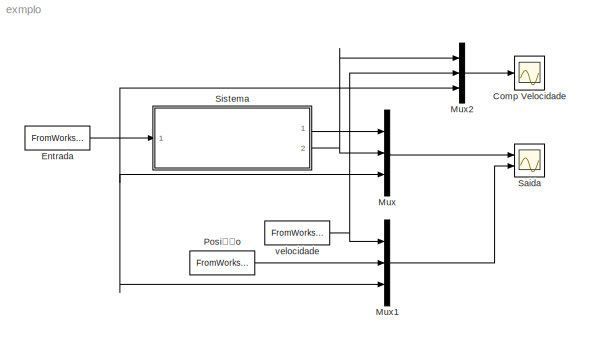
MODEL exmplo
KIND model
BLOCK [Scope] Comp Velocidade
  DataFormat = StructureWithTime
  Floating = off
  LimitDataPoints = off
  NumInputPorts = 1
  Ports = [1]
  SID = 19
  SampleTime = 0
  SaveName = ScopeData1
  ShowLegends = off
BLOCK [FromWorkspace] Entrada
  SID = 17
  SampleTime = 0
  VariableName = input
  ZeroCross = on
BLOCK [Mux] Mux
  DisplayOption = bar
  Inputs = 3
  Ports = [3, 1]
  SID = 13
BLOCK [Mux] Mux1
  DisplayOption = bar
  Inputs = 3
  Ports = [3, 1]
  SID = 18
BLOCK [Mux] Mux2
  DisplayOption = bar
  Inputs = 3
  Ports = [3, 1]
  SID = 20
BLOCK [FromWorkspace] Posição
  SID = 16
  SampleTime = 0
  VariableName = velt
  ZeroCross = on
BLOCK [Scope] Saida
  DataFormat = StructureWithTime
  Floating = off
  LimitDataPoints = off
  NumInputPorts = 2
  Ports = [2]
  SID = 12
  SampleTime = 0
  ShowLegends = off
  YMax = 6~15
  YMin = -10~-15
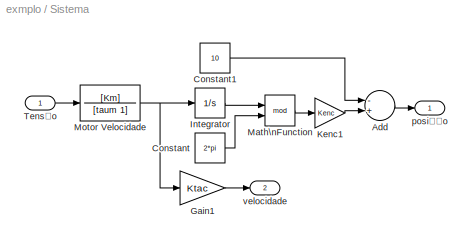
BLOCK [SubSystem] Sistema
  Ports = [1, 2]
  RequestExecContextInheritance = off
  SID = 7
BLOCK [Sum] Sistema/Add
  InputSameDT = off
  Inputs = -+
  OutDataTypeStr = Inherit: Inherit via internal rule
  Ports = [2, 1]
  SID = 21
  SaturateOnIntegerOverflow = off
BLOCK [Constant] Sistema/Constant
  SID = 6
  Value = 2*pi
BLOCK [Constant] Sistema/Constant1
  SID = 22
  Value = 10
BLOCK [Gain] Sistema/Gain1
  Gain = Ktac
  OutDataTypeStr = Inherit: Inherit via internal rule
  ParamDataTypeStr = Inherit: Inherit via internal rule
  SID = 4
  SaturateOnIntegerOverflow = off
BLOCK [Integrator] Sistema/Integrator
  Ports = [1, 1]
  SID = 2
BLOCK [Gain] Sistema/Kenc1
  Gain = Kenc
  OutDataTypeStr = Inherit: Inherit via internal rule
  ParamDataTypeStr = Inherit: Inherit via internal rule
  SID = 14
  SaturateOnIntegerOverflow = off
BLOCK [Math] Sistema/Math\nFunction
  Operator = mod
  Ports = [2, 1]
  SID = 5
BLOCK [TransferFcn] Sistema/Motor Velocidade
  Denominator = [taum 1]
  Numerator = [Km]
  SID = 1
BLOCK [Inport] Sistema/Tensão
  IconDisplay = Port number
  SID = 9
BLOCK [Outport] Sistema/posição
  IconDisplay = Port number
  SID = 8
BLOCK [Outport] Sistema/velocidade
  IconDisplay = Port number
  Port = 2
  SID = 10
BLOCK [FromWorkspace] velocidade
  SID = 15
  SampleTime = 0
  VariableName = post
  ZeroCross = on
NET Entrada:1 -> Mux1:3, Mux2:3, Mux:3, Sistema:1
LINE Mux1:1 -> Saida:2
LINE Mux2:1 -> Comp Velocidade:1
LINE Mux:1 -> Saida:1
LINE Posição:1 -> Mux1:2
LINE Sistema/Add:1 -> Sistema/posição:1
LINE Sistema/Constant1:1 -> Sistema/Add:1
LINE Sistema/Constant:1 -> Sistema/Math\nFunction:2
LINE Sistema/Gain1:1 -> Sistema/velocidade:1
LINE Sistema/Integrator:1 -> Sistema/Math\nFunction:1
LINE Sistema/Kenc1:1 -> Sistema/Add:2
LINE Sistema/Math\nFunction:1 -> Sistema/Kenc1:1
NET Sistema/Motor Velocidade:1 -> Sistema/Gain1:1, Sistema/Integrator:1
LINE Sistema/Tensão:1 -> Sistema/Motor Velocidade:1
LINE Sistema:1 -> Mux:1
NET Sistema:2 -> Mux2:1, Mux:2
NET velocidade:1 -> Mux1:1, Mux2:2
note: NET lines group one-source signal fan-out (src -> all destinations, sorted); 1:1 wires keep LINE
